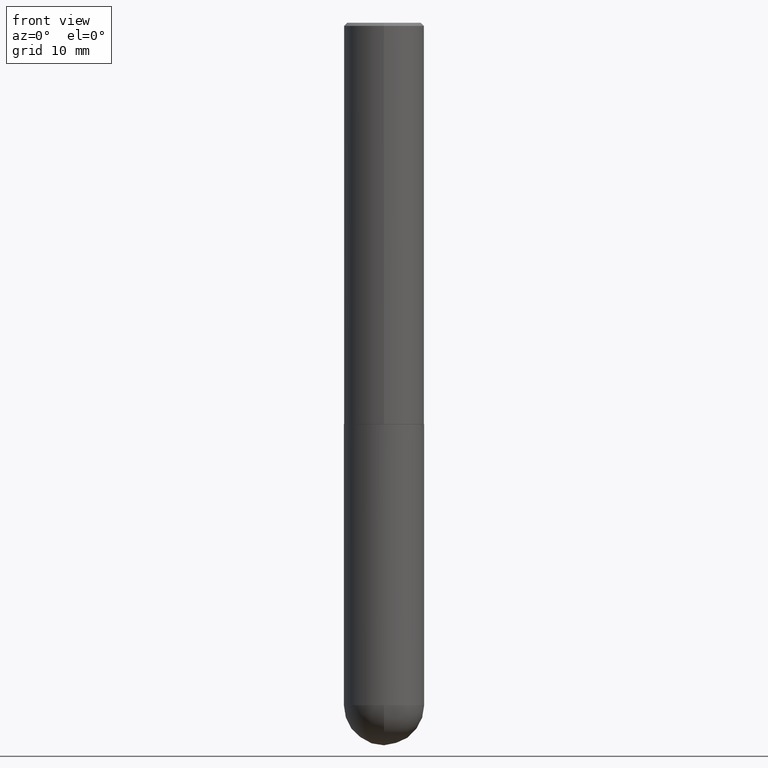
[diagram: clean part render]
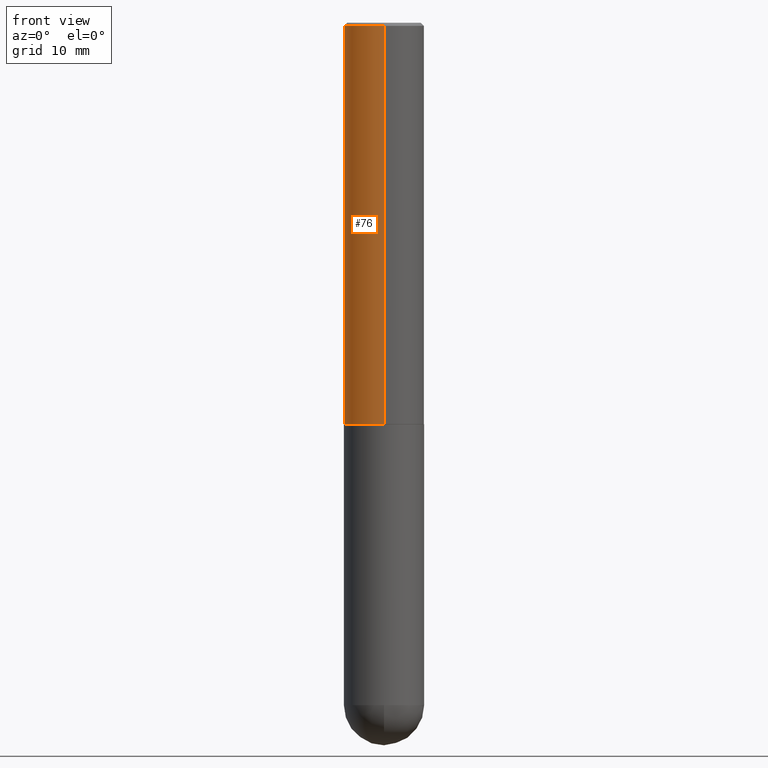
[diagram: same view with one face highlighted and labeled with its STEP entity id]
A machine part, front view. The second image highlights one B-rep face of the part: STEP entity #76.
In plain terms, the highlighted cylindrical surface (partial cylindrical patch) has radius 6.35 mm, axis along (-0, 0, 1).
Its self-contained STEP definition (entity closure, byte-faithful):
#38 = DIRECTION ( 'NONE',  ( -6.982962677686266711E-15, -1.000000000000000000, 3.491995546609659985E-15 ) ) ;
#39 = AXIS2_PLACEMENT_3D ( 'NONE', #137, #352, #38 ) ;
#53 = EDGE_CURVE ( 'NONE', #226, #93, #181, .T. ) ;
#76 = ADVANCED_FACE ( 'NONE', ( #206 ), #203, .T. ) ;
#78 = CARTESIAN_POINT ( 'NONE',  ( -1.745740669421507316E-15, -0.2500000000000089928, -2.498999999999999222 ) ) ;
#88 = CARTESIAN_POINT ( 'NONE',  ( -1.745740669421567467E-15, -0.2500000000000001110, 8.729988866524153908E-16 ) ) ;
#93 = VERTEX_POINT ( 'NONE', #78 ) ;
#107 = DIRECTION ( 'NONE',  ( -2.445109736820922196E-29, 3.491995546609659985E-15, 1.000000000000000000 ) ) ;
#110 = CIRCLE ( 'NONE', #189, 0.2500000000000000000 ) ;
#112 = DIRECTION ( 'NONE',  ( -6.982962677686265922E-15, -1.000000000000000000, 3.500180241882337261E-15 ) ) ;
#134 = CARTESIAN_POINT ( 'NONE',  ( 6.110329232315485644E-29, -8.726496870977541321E-15, -2.499000000000000110 ) ) ;
#137 = CARTESIAN_POINT ( 'NONE',  ( 0.000000000000000000, 0.000000000000000000, 0.000000000000000000 ) ) ;
#139 = DIRECTION ( 'NONE',  ( -6.982962677686265922E-15, -1.000000000000000000, 4.370956789862816416E-15 ) ) ;
#146 = LINE ( 'NONE', #88, #197 ) ;
#161 = VECTOR ( 'NONE', #213, 39.37007874015748143 ) ;
#163 = ORIENTED_EDGE ( 'NONE', *, *, #227, .T. ) ;
#172 = EDGE_CURVE ( 'NONE', #279, #276, #110, .T. ) ;
#181 = CIRCLE ( 'NONE', #247, 0.2500000000000002776 ) ;
#189 = AXIS2_PLACEMENT_3D ( 'NONE', #234, #294, #112 ) ;
#190 = EDGE_CURVE ( 'NONE', #226, #279, #337, .T. ) ;
#197 = VECTOR ( 'NONE', #307, 39.37007874015748143 ) ;
#203 = CYLINDRICAL_SURFACE ( 'NONE', #39, 0.2500000000000001110 ) ;
#206 = FACE_OUTER_BOUND ( 'NONE', #209, .T. ) ;
#209 = EDGE_LOOP ( 'NONE', ( #381, #328, #163, #375 ) ) ;
#213 = DIRECTION ( 'NONE',  ( -2.445109736820922196E-29, 3.491995546609659985E-15, 1.000000000000000000 ) ) ;
#226 = VERTEX_POINT ( 'NONE', #306 ) ;
#227 = EDGE_CURVE ( 'NONE', #93, #276, #146, .T. ) ;
#234 = CARTESIAN_POINT ( 'NONE',  ( 4.890219473641857704E-31, -6.983991093219337770E-17, -0.02000000000000005593 ) ) ;
#242 = CARTESIAN_POINT ( 'NONE',  ( -1.715124499442882299E-15, -0.2500000000000000555, -0.01999999999999918163 ) ) ;
#247 = AXIS2_PLACEMENT_3D ( 'NONE', #134, #107, #139 ) ;
#276 = VERTEX_POINT ( 'NONE', #242 ) ;
#279 = VERTEX_POINT ( 'NONE', #303 ) ;
#294 = DIRECTION ( 'NONE',  ( -2.445109736820922196E-29, 3.491995546609659985E-15, 1.000000000000000000 ) ) ;
#303 = CARTESIAN_POINT ( 'NONE',  ( 1.745740669421566875E-15, 0.2499999999999999167, -0.02000000000000093023 ) ) ;
#306 = CARTESIAN_POINT ( 'NONE',  ( 1.776356839400282414E-15, 0.2499999999999915345, -2.499000000000001442 ) ) ;
#307 = DIRECTION ( 'NONE',  ( -2.445109736820922196E-29, 3.491995546609659985E-15, 1.000000000000000000 ) ) ;
#328 = ORIENTED_EDGE ( 'NONE', *, *, #53, .T. ) ;
#337 = LINE ( 'NONE', #398, #161 ) ;
#352 = DIRECTION ( 'NONE',  ( -2.445109736820922196E-29, 3.491995546609659985E-15, 1.000000000000000000 ) ) ;
#375 = ORIENTED_EDGE ( 'NONE', *, *, #172, .F. ) ;
#381 = ORIENTED_EDGE ( 'NONE', *, *, #190, .F. ) ;
#398 = CARTESIAN_POINT ( 'NONE',  ( 1.776356839400251254E-15, 0.2500000000000001110, -8.729988866524153908E-16 ) ) ;